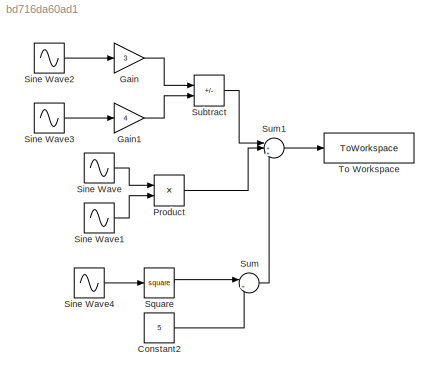
MODEL slx_bd716da60ad1
KIND model
CONFIG AbsTol = auto
CONFIG EnableMultiTasking = off
CONFIG FixedStep = auto
CONFIG MaxStep = auto
CONFIG MinStep = auto
CONFIG RelTol = 1e-3
CONFIG SampleTimeConstraint = Unconstrained
CONFIG SolverName = VariableStepAuto
CONFIG StartTime = 0.0
CONFIG StopTime = 20.0
BLOCK [Constant] Constant2
  Value = 5
BLOCK [Gain] Gain
  Gain = 3
BLOCK [Gain] Gain1
  Gain = 4
BLOCK [Product] Product
BLOCK [Sin] Sine Wave
  Frequency = 6.28
  SampleTime = 0
BLOCK [Sin] Sine Wave1
  Amplitude = 2
  Frequency = 0.63
  Phase = 90
  SampleTime = 0
BLOCK [Sin] Sine Wave2
  Frequency = 6.28
  SampleTime = 0
BLOCK [Sin] Sine Wave3
  Amplitude = 2
  Frequency = 0.63
  Phase = 90
  SampleTime = 0
BLOCK [Sin] Sine Wave4
  Frequency = 6.28
  SampleTime = 0
BLOCK [Math] Square
  Operator = square
BLOCK [Sum] Subtract
  IconShape = rectangular
  Inputs = +-
BLOCK [Sum] Sum
  Inputs = |++
BLOCK [Sum] Sum1
  Inputs = |+++
BLOCK [ToWorkspace] To Workspace
  FixptAsFi = on
  MaxDataPoints = inf
  SampleTime = -1
  SaveFormat = Structure With Time
  VariableName = g
LINE Constant2:1 -> Sum:2
LINE Gain1:1 -> Subtract:2
LINE Gain:1 -> Subtract:1
LINE Product:1 -> Sum1:2
LINE Sine Wave1:1 -> Product:2
LINE Sine Wave2:1 -> Gain:1
LINE Sine Wave3:1 -> Gain1:1
LINE Sine Wave4:1 -> Square:1
LINE Sine Wave:1 -> Product:1
LINE Square:1 -> Sum:1
LINE Subtract:1 -> Sum1:1
LINE Sum1:1 -> To Workspace:1
LINE Sum:1 -> Sum1:3
